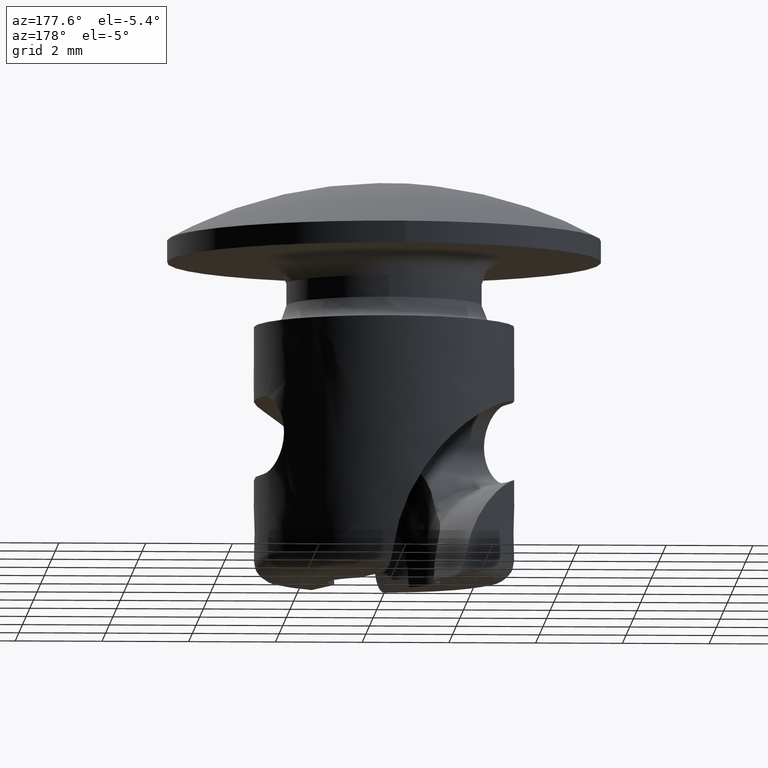
[diagram: clean part render]
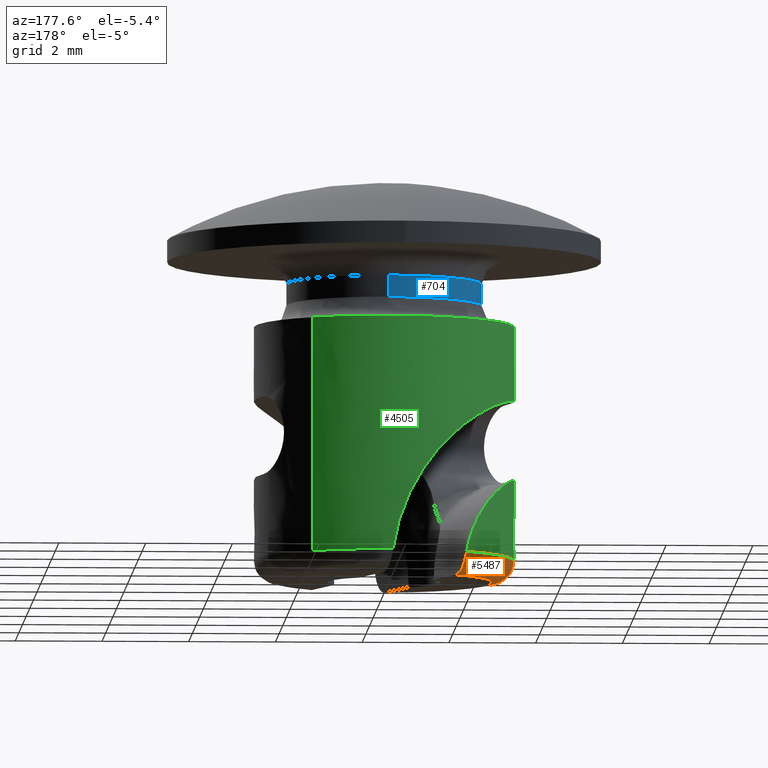
[diagram: same view with three faces highlighted in distinct colors, each labeled with its STEP entity id]
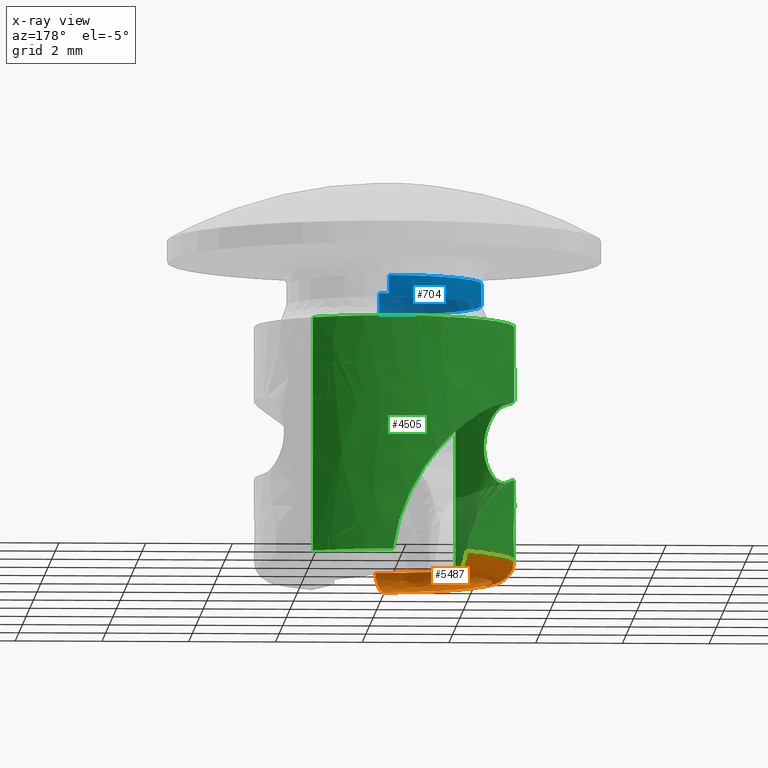
[diagram: x-ray of the same camera — body ghosted, the three highlighted faces saturated]
A machine part, auxiliary view with three faces highlighted in distinct colors.
The next image is the same camera in x-ray (body ghosted, the three faces saturated) — at least one of them is partly hidden behind the body in this view.
Their STEP definitions:

[orange] entity #5487 — the highlighted face is a freeform B-spline surface patch.
#4337=CARTESIAN_POINT('',(-1.743878512532106,-2.441083311468252,-6.899999999999999));
#4338=VERTEX_POINT('',#4337);
#4344=CARTESIAN_POINT('',(0.084513880760828,-2.998809331044365,-6.900000000000000));
#4345=VERTEX_POINT('',#4344);
#4346=CARTESIAN_POINT('',(-1.743878512532108,-2.441083311468253,-6.900000000000000));
#4347=CARTESIAN_POINT('',(-0.923410453437957,-3.027215137347076,-6.900000000000000));
#4348=CARTESIAN_POINT('',(0.084513880760826,-2.998809331044364,-6.900000000000000));
#4356=(BOUNDED_CURVE()B_SPLINE_CURVE(2,(#4346,#4347,#4348),.UNSPECIFIED.,.F.,.U.)B_SPLINE_CURVE_WITH_KNOTS((3,3),(0.743372198286852,1.0),.UNSPECIFIED.)CURVE()GEOMETRIC_REPRESENTATION_ITEM()RATIONAL_B_SPLINE_CURVE((0.903733540292922,0.901111897348261,1.0))REPRESENTATION_ITEM(''));
#4357=EDGE_CURVE('',#4338,#4345,#4356,.T.);
#4444=CARTESIAN_POINT('',(-1.803708136351060,2.397214416538705,-6.900000000000000));
#4445=VERTEX_POINT('',#4444);
#4487=CARTESIAN_POINT('',(-1.803708136351058,2.397214416538703,-6.900000000000000));
#4488=CARTESIAN_POINT('',(-3.555889252561392,1.078841177221821,-6.899999999999999));
#4489=CARTESIAN_POINT('',(-2.831638270195138,-0.990870681151827,-6.900000000000000));
#4490=CARTESIAN_POINT('',(-2.517581247775016,-1.888360031300526,-6.899999999999999));
#4491=CARTESIAN_POINT('',(-1.743878512532108,-2.441083311468253,-6.900000000000000));
#4499=(BOUNDED_CURVE()B_SPLINE_CURVE(2,(#4487,#4488,#4489,#4490,#4491),.UNSPECIFIED.,.F.,.U.)B_SPLINE_CURVE_WITH_KNOTS((3,2,3),(0.0,0.500000000000000,0.743372198286852),.UNSPECIFIED.)CURVE()GEOMETRIC_REPRESENTATION_ITEM()RATIONAL_B_SPLINE_CURVE((1.0,0.807331664785343,1.0,0.906219767437082,0.903733540292922))REPRESENTATION_ITEM(''));
#4500=EDGE_CURVE('',#4445,#4338,#4499,.T.);
#5355=CARTESIAN_POINT('',(-1.582082869889200,1.935720484161465,-7.400000000000000));
#5356=VERTEX_POINT('',#5355);
#5362=CARTESIAN_POINT('',(-1.803708136351065,2.397214416538697,-6.900000000000000));
#5363=CARTESIAN_POINT('',(-1.797961181382960,2.401538530962380,-6.933022218982509));
#5364=CARTESIAN_POINT('',(-1.791695716217509,2.402168208701092,-6.965802722609945));
#5365=CARTESIAN_POINT('',(-1.778037517526572,2.396064065551735,-7.030863106628091));
#5366=CARTESIAN_POINT('',(-1.770557651700607,2.389159614174948,-7.063437987132889));
#5367=CARTESIAN_POINT('',(-1.754914442266166,2.368478974802954,-7.124957164972694));
#5368=CARTESIAN_POINT('',(-1.746691934570622,2.354739567156567,-7.154246174715344));
#5369=CARTESIAN_POINT('',(-1.729105291971162,2.320515891710364,-7.209813121534586));
#5370=CARTESIAN_POINT('',(-1.720049279144245,2.300641134625487,-7.235106421165424));
#5371=CARTESIAN_POINT('',(-1.701102163545381,2.255946609215684,-7.281028537031800));
#5372=CARTESIAN_POINT('',(-1.691120242793065,2.230869381422502,-7.301767507089904));
#5373=CARTESIAN_POINT('',(-1.670751195661710,2.177921899020986,-7.337102208165809));
#5374=CARTESIAN_POINT('',(-1.660292441565339,2.149896562634293,-7.351925258676292));
#5375=CARTESIAN_POINT('',(-1.638551208425671,2.090911029740821,-7.375992494795002));
#5376=CARTESIAN_POINT('',(-1.627459014622146,2.060467506730734,-7.384988637944568));
#5377=CARTESIAN_POINT('',(-1.605040171158075,1.998850292804469,-7.396962643234331));
#5378=CARTESIAN_POINT('',(-1.593574760727012,1.967294173146149,-7.400000000000012));
#5379=CARTESIAN_POINT('',(-1.582082869889198,1.935720484161466,-7.400000000000000));
#5380=B_SPLINE_CURVE_WITH_KNOTS('',3,(#5362,#5363,#5364,#5365,#5366,#5367,#5368,#5369,#5370,#5371,#5372,#5373,#5374,#5375,#5376,#5377,#5378,#5379),.UNSPECIFIED.,.F.,.U.,(4,2,2,2,2,2,2,2,4),(0.0,0.125000000000000,0.250000000000000,0.375000000000000,0.500000000000000,0.625000000000000,0.750000000000000,0.875000000000000,1.0),.UNSPECIFIED.);
#5381=EDGE_CURVE('',#4445,#5356,#5380,.T.);
#5403=CARTESIAN_POINT('',(-0.129273508809591,-2.496655434760685,-7.400000000000000));
#5404=VERTEX_POINT('',#5403);
#5405=CARTESIAN_POINT('',(0.084513880760828,-2.998809331044365,-6.900000000000000));
#5406=CARTESIAN_POINT('',(0.080249640827647,-2.998929507896393,-6.934179523748178));
#5407=CARTESIAN_POINT('',(0.075266717654298,-2.995591923318556,-6.967668315390085));
#5408=CARTESIAN_POINT('',(0.063882605638619,-2.982380328953165,-7.033330311159737));
#5409=CARTESIAN_POINT('',(0.057394389934087,-2.972329246874971,-7.065851533563909));
#5410=CARTESIAN_POINT('',(0.043265946801210,-2.946272948323146,-7.127336415637835));
#5411=CARTESIAN_POINT('',(0.035640559682049,-2.930354550876194,-7.156354816391503));
#5412=CARTESIAN_POINT('',(0.019086528760610,-2.892879908489271,-7.210973620549295));
#5413=CARTESIAN_POINT('',(0.010145760742199,-2.871262656642818,-7.236496990878762));
#5414=CARTESIAN_POINT('',(-0.008499485151161,-2.824302943575927,-7.281965370563245));
#5415=CARTESIAN_POINT('',(-0.018292046451575,-2.798765280771811,-7.302225975906246));
#5416=CARTESIAN_POINT('',(-0.039037932293067,-2.743595936780727,-7.337727951273239));
#5417=CARTESIAN_POINT('',(-0.049691805990631,-2.714764971014944,-7.352448876695371));
#5418=CARTESIAN_POINT('',(-0.071631319478530,-2.654976445000061,-7.376139308437509));
#5419=CARTESIAN_POINT('',(-0.083029779238905,-2.623706784345685,-7.385166526157228));
#5420=CARTESIAN_POINT('',(-0.106071620560561,-2.560423655039485,-7.397083143075069));
#5421=CARTESIAN_POINT('',(-0.117640795038970,-2.528616031309301,-7.400000000000236));
#5422=CARTESIAN_POINT('',(-0.129273508809769,-2.496655434760764,-7.400000000000238));
#5423=B_SPLINE_CURVE_WITH_KNOTS('',3,(#5405,#5406,#5407,#5408,#5409,#5410,#5411,#5412,#5413,#5414,#5415,#5416,#5417,#5418,#5419,#5420,#5421,#5422),.UNSPECIFIED.,.F.,.U.,(4,2,2,2,2,2,2,2,4),(0.0,0.125000000000000,0.250000000000000,0.375000000000000,0.500000000000000,0.625000000000000,0.750000000000000,0.875000000000000,1.0),.UNSPECIFIED.);
#5424=EDGE_CURVE('',#4345,#5404,#5423,.T.);
#5434=CARTESIAN_POINT('',(-1.220628940456989,2.141721197691870,-7.398783150898820));
#5435=CARTESIAN_POINT('',(-2.998717988184576,1.128336751245284,-7.398783150898823));
#5436=CARTESIAN_POINT('',(-2.329710772487042,-0.805824059880122,-7.398783150898822));
#5437=CARTESIAN_POINT('',(-1.660772273449445,-2.739786204881156,-7.398783150898823));
#5438=CARTESIAN_POINT('',(0.363270439289297,-2.438224617803376,-7.398783150898823));
#5439=CARTESIAN_POINT('',(-1.504616018831635,2.640006241955898,-7.438869667779611));
#5440=CARTESIAN_POINT('',(-3.696388780764020,1.390851465412983,-7.438869667779613));
#5441=CARTESIAN_POINT('',(-2.871732785736081,-0.993304147287910,-7.438869667779613));
#5442=CARTESIAN_POINT('',(-2.047161494735607,-3.377214872928354,-7.438869667779612));
#5443=CARTESIAN_POINT('',(0.447787615061828,-3.005493066617873,-7.438869667779612));
#5444=CARTESIAN_POINT('',(-1.484873299678813,2.605365575404239,-6.865324705184772));
#5445=CARTESIAN_POINT('',(-3.647886860895497,1.372601500291475,-6.865324705184777));
#5446=CARTESIAN_POINT('',(-2.834051534731744,-0.980270572895643,-6.865324705184775));
#5447=CARTESIAN_POINT('',(-2.020299801157187,-3.332900972291611,-6.865324705184776));
#5448=CARTESIAN_POINT('',(0.441911999613348,-2.966056688972456,-6.865324705184774));
#5456=(BOUNDED_SURFACE()B_SPLINE_SURFACE(2,2,((#5434,#5439,#5444),(#5435,#5440,#5445),(#5436,#5441,#5446),(#5437,#5442,#5447),(#5438,#5443,#5448)),.UNSPECIFIED.,.F.,.F.,.U.)B_SPLINE_SURFACE_WITH_KNOTS((3,2,3),(3,3),(0.0,4.330173010718348,8.660007971026714),(0.0,0.911185222415850),.UNSPECIFIED.)GEOMETRIC_REPRESENTATION_ITEM()RATIONAL_B_SPLINE_SURFACE(((0.891703937481030,0.586785571209039,0.896670707145739),(0.694529505467832,0.457034981519461,0.698398018248822),(0.913811094967896,0.601333181114613,0.918901000972554),(0.694546624467708,0.457046246673397,0.698415232601118),(0.891673153767747,0.586765313993585,0.896639751967909)))REPRESENTATION_ITEM('')SURFACE());
#5457=ORIENTED_EDGE('',*,*,#4357,.F.);
#5458=ORIENTED_EDGE('',*,*,#4500,.F.);
#5459=ORIENTED_EDGE('',*,*,#5381,.T.);
#5460=CARTESIAN_POINT('',(-0.129273508809591,-2.496655434760685,-7.400000000000000));
#5461=CARTESIAN_POINT('',(-0.277801257051889,-2.488980804521002,-7.399999999999997));
#5462=CARTESIAN_POINT('',(-0.495660132037792,-2.458038532278590,-7.399999999999985));
#5463=CARTESIAN_POINT('',(-0.805028879807325,-2.371590909038336,-7.400000000000029));
#5464=CARTESIAN_POINT('',(-1.111427679083995,-2.250722072444934,-7.399999999999939));
#5465=CARTESIAN_POINT('',(-1.423328356046611,-2.067645664381170,-7.400000000000022));
#5466=CARTESIAN_POINT('',(-1.678231619904428,-1.859045289911891,-7.400000000000013));
#5467=CARTESIAN_POINT('',(-1.899017838995271,-1.636636071335854,-7.399999999999928));
#5468=CARTESIAN_POINT('',(-2.083221797329770,-1.396763343215451,-7.400000000000273));
#5469=CARTESIAN_POINT('',(-2.265122632774566,-1.076360196646100,-7.399999999999333));
#5470=CARTESIAN_POINT('',(-2.381690381303935,-0.784626127673196,-7.400000000001425));
#5471=CARTESIAN_POINT('',(-2.461944023957102,-0.465359847030243,-7.399999999999087));
#5472=CARTESIAN_POINT('',(-2.506604995012188,-0.127104609455254,-7.400000000000590));
#5473=CARTESIAN_POINT('',(-2.498688460298284,0.242175595612436,-7.399999999999847));
#5474=CARTESIAN_POINT('',(-2.427543263406517,0.635941191012803,-7.399999999999396));
#5475=CARTESIAN_POINT('',(-2.320946518025927,0.948116782062701,-7.400000000000315));
#5476=CARTESIAN_POINT('',(-2.182288406986110,1.229234532182210,-7.399999999999682));
#5477=CARTESIAN_POINT('',(-2.039801596017193,1.454563006497734,-7.400000000000615));
#5478=CARTESIAN_POINT('',(-1.841013201385207,1.702106712840802,-7.399999999999006));
#5479=CARTESIAN_POINT('',(-1.682091786727279,1.853993551374730,-7.400000000001063));
#5480=CARTESIAN_POINT('',(-1.582082869889200,1.935720484161465,-7.400000000000000));
#5481=B_SPLINE_CURVE_WITH_KNOTS('',3,(#5460,#5461,#5462,#5463,#5464,#5465,#5466,#5467,#5468,#5469,#5470,#5471,#5472,#5473,#5474,#5475,#5476,#5477,#5478,#5479,#5480),.UNSPECIFIED.,.F.,.U.,(4,1,1,1,1,1,1,1,1,1,1,1,1,1,1,1,1,1,4),(0.000000010724058,0.446173797038003,0.657521533863358,0.962799198912007,1.432460673357116,1.737740531162690,1.949088253579649,2.371783140292630,2.641837158261725,3.052779955990687,3.311095169875363,3.628114139860734,4.074292471692561,4.414797036118530,4.825750795329416,5.060581459557786,5.354119777379385,5.624174580072793,6.011638970585607),.UNSPECIFIED.);
#5482=EDGE_CURVE('',#5404,#5356,#5481,.T.);
#5483=ORIENTED_EDGE('',*,*,#5482,.F.);
#5484=ORIENTED_EDGE('',*,*,#5424,.F.);
#5485=EDGE_LOOP('',(#5457,#5458,#5459,#5483,#5484));
#5486=FACE_OUTER_BOUND('',#5485,.T.);
#5487=ADVANCED_FACE('',(#5486),#5456,.T.);

[blue] entity #704 — the highlighted face is a freeform B-spline surface patch.
#499=CARTESIAN_POINT('',(-2.249822389316115,-0.028270417823144,-0.500000475521371));
#500=VERTEX_POINT('',#499);
#514=CARTESIAN_POINT('',(0.019633587222252,-2.249914336647404,-0.500000237179640));
#515=VERTEX_POINT('',#514);
#516=CARTESIAN_POINT('',(0.019633587222252,-2.249914336647404,-0.500000237179640));
#517=CARTESIAN_POINT('',(0.009816980490564,-2.249999999999712,-0.500000238217032));
#518=CARTESIAN_POINT('',(8.948892E-013,-2.249999999999714,-0.500000239254406));
#519=CARTESIAN_POINT('',(-2.221904975089807,-2.249999999999841,-0.500000474046277));
#520=CARTESIAN_POINT('',(-2.249822389316116,-0.028270417823144,-0.500000475521371));
#528=(BOUNDED_CURVE()B_SPLINE_CURVE(2,(#516,#517,#518,#519,#520),.UNSPECIFIED.,.F.,.U.)B_SPLINE_CURVE_WITH_KNOTS((3,2,3),(0.748460193164341,0.750000000000000,0.997784543868147),.UNSPECIFIED.)CURVE()GEOMETRIC_REPRESENTATION_ITEM()RATIONAL_B_SPLINE_CURVE((0.996414230598438,0.998196004078212,1.0,0.709702349496941,0.994854866321043))REPRESENTATION_ITEM(''));
#529=EDGE_CURVE('',#515,#500,#528,.T.);
#570=CARTESIAN_POINT('',(-2.250000000000000,0.0,-0.499999999999945));
#571=VERTEX_POINT('',#570);
#572=CARTESIAN_POINT('',(-0.019633587222252,2.249914336647404,-0.500000237179640));
#573=VERTEX_POINT('',#572);
#574=CARTESIAN_POINT('',(-2.250000000000000,0.0,-0.499999999999945));
#575=CARTESIAN_POINT('',(-2.250000000000004,2.230451331862164,-0.500000001480715));
#576=CARTESIAN_POINT('',(-0.019633587222252,2.249914336647403,-0.500000237179640));
#584=(BOUNDED_CURVE()B_SPLINE_CURVE(2,(#574,#575,#576),.UNSPECIFIED.,.F.,.U.)B_SPLINE_CURVE_WITH_KNOTS((3,3),(0.0,0.248460193164341),.UNSPECIFIED.)CURVE()GEOMETRIC_REPRESENTATION_ITEM()RATIONAL_B_SPLINE_CURVE((1.0,0.708910777108336,0.996414230598439))REPRESENTATION_ITEM(''));
#585=EDGE_CURVE('',#571,#573,#584,.T.);
#587=CARTESIAN_POINT('',(-2.249822389316116,-0.028270417823144,-0.500000475521371));
#588=CARTESIAN_POINT('',(-2.249999999999108,-0.014135766836725,-0.500000237760658));
#589=CARTESIAN_POINT('',(-2.250000000000000,0.0,-0.499999999999945));
#597=(BOUNDED_CURVE()B_SPLINE_CURVE(2,(#587,#588,#589),.UNSPECIFIED.,.F.,.U.)B_SPLINE_CURVE_WITH_KNOTS((3,3),(0.997784543868147,1.0),.UNSPECIFIED.)CURVE()GEOMETRIC_REPRESENTATION_ITEM()RATIONAL_B_SPLINE_CURVE((0.994854866321043,0.997404431689606,1.0))REPRESENTATION_ITEM(''));
#598=EDGE_CURVE('',#500,#571,#597,.T.);
#622=CARTESIAN_POINT('',(-0.019634704871341,2.249914326894384,-1.012500020154509));
#623=CARTESIAN_POINT('',(-2.269549031765726,2.230279622023043,-1.012500020154509));
#624=CARTESIAN_POINT('',(-2.249914326894384,-0.019634704871341,-1.012500020154509));
#625=CARTESIAN_POINT('',(-2.230279622023043,-2.269549031765726,-1.012500020154509));
#626=CARTESIAN_POINT('',(0.019634704871341,-2.249914326894384,-1.012500020154509));
#627=CARTESIAN_POINT('',(-0.019634704871341,2.249914326894384,-0.487187499496081));
#628=CARTESIAN_POINT('',(-2.269549031765726,2.230279622023043,-0.487187499496081));
#629=CARTESIAN_POINT('',(-2.249914326894384,-0.019634704871341,-0.487187499496081));
#630=CARTESIAN_POINT('',(-2.230279622023043,-2.269549031765726,-0.487187499496081));
#631=CARTESIAN_POINT('',(0.019634704871341,-2.249914326894384,-0.487187499496081));
#639=(BOUNDED_SURFACE()B_SPLINE_SURFACE(2,1,((#622,#627),(#623,#628),(#624,#629),(#625,#630),(#626,#631)),.UNSPECIFIED.,.F.,.F.,.U.)B_SPLINE_SURFACE_WITH_KNOTS((3,2,3),(2,2),(0.0,3.727922061357854,7.455844122715709),(0.0,1.0),.UNSPECIFIED.)GEOMETRIC_REPRESENTATION_ITEM()RATIONAL_B_SPLINE_SURFACE(((1.0,1.0),(0.707106781186548,0.707106781186548),(1.0,1.0),(0.707106781186548,0.707106781186548),(1.0,1.0)))REPRESENTATION_ITEM('')SURFACE());
#640=CARTESIAN_POINT('',(-0.019633703514247,2.249914335632650,-1.000000009979010));
#641=VERTEX_POINT('',#640);
#642=CARTESIAN_POINT('',(-2.249822349458519,0.028273589742916,-1.000000019662934));
#643=VERTEX_POINT('',#642);
#644=CARTESIAN_POINT('',(-0.019633703514247,2.249914335632651,-1.000000009979010));
#645=CARTESIAN_POINT('',(-2.222144457690948,2.230694295807431,-1.000000019602452));
#646=CARTESIAN_POINT('',(-2.249822349458519,0.028273589742916,-1.000000019662934));
#654=(BOUNDED_CURVE()B_SPLINE_CURVE(2,(#644,#645,#646),.UNSPECIFIED.,.F.,.U.)B_SPLINE_CURVE_WITH_KNOTS((3,3),(0.251539815940075,0.497784295921308),.UNSPECIFIED.)CURVE()GEOMETRIC_REPRESENTATION_ITEM()RATIONAL_B_SPLINE_CURVE((0.996414209528255,0.711474669414962,0.994854295643046))REPRESENTATION_ITEM(''));
#655=EDGE_CURVE('',#641,#643,#654,.T.);
#656=ORIENTED_EDGE('',*,*,#655,.T.);
#657=CARTESIAN_POINT('',(-2.250000000000000,0.0,-1.0));
#658=VERTEX_POINT('',#657);
#659=CARTESIAN_POINT('',(-2.249822349458519,0.028273589742916,-1.000000019662934));
#660=CARTESIAN_POINT('',(-2.250000000000000,0.014137352984439,-1.000000009831467));
#661=CARTESIAN_POINT('',(-2.250000000000000,0.0,-1.0));
#669=(BOUNDED_CURVE()B_SPLINE_CURVE(2,(#659,#660,#661),.UNSPECIFIED.,.F.,.U.)B_SPLINE_CURVE_WITH_KNOTS((3,3),(0.497784295921308,0.500000000000000),.UNSPECIFIED.)CURVE()GEOMETRIC_REPRESENTATION_ITEM()RATIONAL_B_SPLINE_CURVE((0.994854295643046,0.997404141201815,1.0))REPRESENTATION_ITEM(''));
#670=EDGE_CURVE('',#643,#658,#669,.T.);
#671=ORIENTED_EDGE('',*,*,#670,.T.);
#672=CARTESIAN_POINT('',(0.019633703514247,-2.249914335632650,-1.000000009979010));
#673=VERTEX_POINT('',#672);
#674=CARTESIAN_POINT('',(-2.250000000000000,0.0,-1.0));
#675=CARTESIAN_POINT('',(-2.250000000000002,-2.249999999999890,-1.000000000061764));
#676=CARTESIAN_POINT('',(-2.370796E-015,-2.249999999999777,-1.000000009893222));
#677=CARTESIAN_POINT('',(0.009817038639434,-2.249999999999777,-1.000000009936118));
#678=CARTESIAN_POINT('',(0.019633703514247,-2.249914335632650,-1.000000009979010));
#686=(BOUNDED_CURVE()B_SPLINE_CURVE(2,(#674,#675,#676,#677,#678),.UNSPECIFIED.,.F.,.U.)B_SPLINE_CURVE_WITH_KNOTS((3,2,3),(0.500000000000000,0.750000000000000,0.751539815940075),.UNSPECIFIED.)CURVE()GEOMETRIC_REPRESENTATION_ITEM()RATIONAL_B_SPLINE_CURVE((1.0,0.707106781186547,1.0,0.998195993411725,0.996414209528255))REPRESENTATION_ITEM(''));
#687=EDGE_CURVE('',#658,#673,#686,.T.);
#688=ORIENTED_EDGE('',*,*,#687,.T.);
#689=CARTESIAN_POINT('',(0.019633703514247,-2.249914335632650,-1.000000009979010));
#690=CARTESIAN_POINT('',(0.019633587222252,-2.249914336647404,-0.500000237179640));
#691=QUASI_UNIFORM_CURVE('',1,(#689,#690),.UNSPECIFIED.,.F.,.U.);
#692=EDGE_CURVE('',#673,#515,#691,.T.);
#693=ORIENTED_EDGE('',*,*,#692,.T.);
#694=ORIENTED_EDGE('',*,*,#529,.T.);
#695=ORIENTED_EDGE('',*,*,#598,.T.);
#696=ORIENTED_EDGE('',*,*,#585,.T.);
#697=CARTESIAN_POINT('',(-0.019633703514247,2.249914335632650,-1.000000009979010));
#698=CARTESIAN_POINT('',(-0.019633587222252,2.249914336647404,-0.500000237179640));
#699=QUASI_UNIFORM_CURVE('',1,(#697,#698),.UNSPECIFIED.,.F.,.U.);
#700=EDGE_CURVE('',#641,#573,#699,.T.);
#701=ORIENTED_EDGE('',*,*,#700,.F.);
#702=EDGE_LOOP('',(#656,#671,#688,#693,#694,#695,#696,#701));
#703=FACE_OUTER_BOUND('',#702,.T.);
#704=ADVANCED_FACE('',(#703),#639,.T.);

[green] entity #4505 — the highlighted face is a freeform B-spline surface patch.
#1182=CARTESIAN_POINT('',(-2.819077636768030,-1.026061049779424,-3.200000000000000));
#1183=VERTEX_POINT('',#1182);
#1370=CARTESIAN_POINT('',(-2.819077636768980,-1.026061049776802,-5.0));
#1371=VERTEX_POINT('',#1370);
#1771=CARTESIAN_POINT('',(-0.084513880760795,2.998809331044365,-6.900000000000000));
#1772=VERTEX_POINT('',#1771);
#1773=CARTESIAN_POINT('',(-2.819077636768030,-1.026061049779424,-3.200000000000000));
#1774=CARTESIAN_POINT('',(-2.873550972533298,-0.876396892184820,-3.200000000000014));
#1775=CARTESIAN_POINT('',(-2.915453257440908,-0.724426621176468,-3.200620960101949));
#1776=CARTESIAN_POINT('',(-2.975154664067936,-0.416072530536141,-3.203704992722730));
#1777=CARTESIAN_POINT('',(-2.992951893773923,-0.259688294556457,-3.206162579722587));
#1778=CARTESIAN_POINT('',(-2.999634688395524,-0.061373257389993,-3.211644033070710));
#1779=CARTESIAN_POINT('',(-3.000185054679621,-0.021507609498423,-3.212867260930302));
#1780=CARTESIAN_POINT('',(-2.999705113013827,0.057811543380187,-3.215584441225255));
#1781=CARTESIAN_POINT('',(-2.996627406675537,0.176399277104420,-3.220072589589952));
#1782=CARTESIAN_POINT('',(-2.986605089649258,0.293820577257775,-3.225976006410372));
#1783=CARTESIAN_POINT('',(-2.957487717714053,0.527094272522938,-3.240242224863573));
#1784=CARTESIAN_POINT('',(-2.926028094709749,0.680529320736896,-3.252982869026257));
#1785=CARTESIAN_POINT('',(-2.860590790118135,0.907309469445002,-3.279980962199737));
#1786=CARTESIAN_POINT('',(-2.835602913669079,0.982587445909025,-3.290360778736338));
#1787=CARTESIAN_POINT('',(-2.780528962189128,1.129061850960359,-3.313932652697721));
#1788=CARTESIAN_POINT('',(-2.750371320043353,1.200582192634356,-3.327153070128216));
#1789=CARTESIAN_POINT('',(-2.652459666878137,1.410041741628936,-3.371791994183104));
#1790=CARTESIAN_POINT('',(-2.577290539921757,1.542900104226222,-3.408154750175014));
#1791=CARTESIAN_POINT('',(-2.450834805110072,1.731805581686016,-3.475779004500222));
#1792=CARTESIAN_POINT('',(-2.406135910051407,1.793342818281664,-3.500663561705135));
#1793=CARTESIAN_POINT('',(-2.313999938761264,1.910751884712975,-3.554430318977048));
#1794=CARTESIAN_POINT('',(-2.266516013630884,1.966756447840507,-3.583324688457430));
#1795=CARTESIAN_POINT('',(-2.120476966474755,2.127082625409792,-3.676393134085370));
#1796=CARTESIAN_POINT('',(-2.018344502276162,2.223734870477811,-3.746939650928855));
#1797=CARTESIAN_POINT('',(-1.860287265590625,2.354571960143732,-3.867088813895853));
#1798=CARTESIAN_POINT('',(-1.806664794096661,2.395887459567101,-3.909649710559402));
#1799=CARTESIAN_POINT('',(-1.700069317336438,2.472666316628760,-3.998204176422849));
#1800=CARTESIAN_POINT('',(-1.646873673598775,2.508328226089166,-4.044357093658393));
#1801=CARTESIAN_POINT('',(-1.488086701576572,2.607913249121752,-4.188463120588741));
#1802=CARTESIAN_POINT('',(-1.383297055922477,2.664458477860601,-4.292050562019399));
#1803=CARTESIAN_POINT('',(-1.229537073905440,2.737051518547600,-4.459003779661253));
#1804=CARTESIAN_POINT('',(-1.179033512583073,2.759110629549861,-4.516410316684110));
#1805=CARTESIAN_POINT('',(-1.080795796758134,2.799051970864237,-4.633446885482379));
#1806=CARTESIAN_POINT('',(-1.032895332989122,2.817013256605606,-4.693254826886947));
#1807=CARTESIAN_POINT('',(-0.893045203287020,2.865696441023730,-4.876502538980319));
#1808=CARTESIAN_POINT('',(-0.804936606905441,2.891241852757484,-5.003753789994796));
#1809=CARTESIAN_POINT('',(-0.681383857218495,2.921902913717402,-5.202308153453269));
#1810=CARTESIAN_POINT('',(-0.641636892288733,2.930840169511570,-5.269775616435576));
#1811=CARTESIAN_POINT('',(-0.565205892206523,2.946534286273213,-5.407322389132385));
#1812=CARTESIAN_POINT('',(-0.528436695903858,2.953302858642278,-5.477590836226539));
#1813=CARTESIAN_POINT('',(-0.424105008883442,2.970708233268607,-5.690181386340784));
#1814=CARTESIAN_POINT('',(-0.362212268531800,2.978547339912875,-5.834715356492886));
#1815=CARTESIAN_POINT('',(-0.254306355349250,2.989694007955666,-6.129474435420192));
#1816=CARTESIAN_POINT('',(-0.208292826599077,2.992996566868002,-6.279699614013794));
#1817=CARTESIAN_POINT('',(-0.133199036840523,2.997277492572392,-6.586121761374924));
#1818=CARTESIAN_POINT('',(-0.104112849850440,2.998256983511118,-6.742906721966787));
#1819=CARTESIAN_POINT('',(-0.084513880760795,2.998809331044365,-6.900000000000000));
#1820=B_SPLINE_CURVE_WITH_KNOTS('',3,(#1773,#1774,#1775,#1776,#1777,#1778,#1779,#1780,#1781,#1782,#1783,#1784,#1785,#1786,#1787,#1788,#1789,#1790,#1791,#1792,#1793,#1794,#1795,#1796,#1797,#1798,#1799,#1800,#1801,#1802,#1803,#1804,#1805,#1806,#1807,#1808,#1809,#1810,#1811,#1812,#1813,#1814,#1815,#1816,#1817,#1818,#1819),.UNSPECIFIED.,.F.,.U.,(4,2,2,2,1,2,2,2,2,2,2,2,2,2,2,2,2,2,2,2,2,2,2,4),(0.0,0.062500000000000,0.125000000000000,0.140625000000000,0.156250000000000,0.187500000000000,0.250000000000000,0.281250000000000,0.312500000000000,0.375000000000000,0.406250000000000,0.437500000000000,0.500000000000000,0.531250000000001,0.562500000000001,0.625000000000001,0.656250000000001,0.687500000000001,0.750000000000001,0.781250000000001,0.812500000000001,0.875000000000001,0.937500000000000,1.0),.UNSPECIFIED.);
#1821=EDGE_CURVE('',#1183,#1772,#1820,.T.);
#2283=CARTESIAN_POINT('',(-2.819077636768980,-1.026061049776802,-5.0));
#2284=CARTESIAN_POINT('',(-2.798785852479630,-1.081812230770973,-4.999999999997360));
#2285=CARTESIAN_POINT('',(-2.777069528812395,-1.136336782182247,-4.994190302238293));
#2286=CARTESIAN_POINT('',(-2.742505030692936,-1.216351211297097,-4.976839874352963));
#2287=CARTESIAN_POINT('',(-2.730583819175942,-1.242869515625153,-4.969554674253077));
#2288=CARTESIAN_POINT('',(-2.706472905489137,-1.294533521493143,-4.952243963360752));
#2289=CARTESIAN_POINT('',(-2.694312216955098,-1.319631296011369,-4.942256422416298));
#2290=CARTESIAN_POINT('',(-2.657625240135685,-1.392841843992243,-4.908421059078902));
#2291=CARTESIAN_POINT('',(-2.632886615184682,-1.438888123841255,-4.880739812898549));
#2292=CARTESIAN_POINT('',(-2.583566684362101,-1.525671704138101,-4.814825006292114));
#2293=CARTESIAN_POINT('',(-2.559772192719916,-1.565039603624656,-4.777633719952977));
#2294=CARTESIAN_POINT('',(-2.525979345079011,-1.618602486137032,-4.715738162669947));
#2295=CARTESIAN_POINT('',(-2.515032423152089,-1.635536659370933,-4.694078363240527));
#2296=CARTESIAN_POINT('',(-2.493903576447383,-1.667577046207623,-4.648640021082660));
#2297=CARTESIAN_POINT('',(-2.483709691512201,-1.682697311900877,-4.624804741869280));
#2298=CARTESIAN_POINT('',(-2.455114335555809,-1.724398416856126,-4.551604247448521));
#2299=CARTESIAN_POINT('',(-2.438448916111963,-1.747718388370456,-4.500096136917394));
#2300=CARTESIAN_POINT('',(-2.410759514257337,-1.785718691720979,-4.391543836776870));
#2301=CARTESIAN_POINT('',(-2.399752444081323,-1.800370634028138,-4.334074415587891));
#2302=CARTESIAN_POINT('',(-2.385161507846844,-1.819656779241436,-4.218285935031219));
#2303=CARTESIAN_POINT('',(-2.381392567649904,-1.824546365444437,-4.159412155376280));
#2304=CARTESIAN_POINT('',(-2.381428267187695,-1.824499769570197,-4.039745567977482));
#2305=CARTESIAN_POINT('',(-2.385229138652552,-1.819568188285412,-3.980985526308503));
#2306=CARTESIAN_POINT('',(-2.396180097879803,-1.805092116070904,-3.894371819951651));
#2307=CARTESIAN_POINT('',(-2.400709065834778,-1.799076850261900,-3.865756764253603));
#2308=CARTESIAN_POINT('',(-2.411495313848231,-1.784592918068325,-3.809046174169361));
#2309=CARTESIAN_POINT('',(-2.417762778510589,-1.776108750764782,-3.780965935927992));
#2310=CARTESIAN_POINT('',(-2.438601444201112,-1.747506677212690,-3.699376578650755));
#2311=CARTESIAN_POINT('',(-2.455307779311859,-1.724123548926781,-3.647836429064805));
#2312=CARTESIAN_POINT('',(-2.483923230006761,-1.682382228646613,-3.574681217132690));
#2313=CARTESIAN_POINT('',(-2.494117019341063,-1.667258036072774,-3.550874699235819));
#2314=CARTESIAN_POINT('',(-2.515264798027687,-1.635179519446435,-3.505448729055519));
#2315=CARTESIAN_POINT('',(-2.526217587204720,-1.618230735950635,-3.483802800459786));
#2316=CARTESIAN_POINT('',(-2.560015769327163,-1.564641591960566,-3.421966210363377));
#2317=CARTESIAN_POINT('',(-2.583792408568133,-1.525287978785482,-3.384844237373315));
#2318=CARTESIAN_POINT('',(-2.633057817666114,-1.438573306307360,-3.319060696459283));
#2319=CARTESIAN_POINT('',(-2.657834514952780,-1.392437553241889,-3.291366198711797));
#2320=CARTESIAN_POINT('',(-2.694429221274407,-1.319391084443051,-3.257645624661647));
#2321=CARTESIAN_POINT('',(-2.706548035656226,-1.294373731936331,-3.247700526224403));
#2322=CARTESIAN_POINT('',(-2.730553972218855,-1.242932271700479,-3.230468327488715));
#2323=CARTESIAN_POINT('',(-2.742503483853151,-1.216356778076477,-3.223158500610723));
#2324=CARTESIAN_POINT('',(-2.777169209998941,-1.136102046923137,-3.205764473579110));
#2325=CARTESIAN_POINT('',(-2.798865103153312,-1.081594491490002,-3.199999999995255));
#2326=CARTESIAN_POINT('',(-2.819077636768030,-1.026061049779424,-3.200000000000000));
#2327=B_SPLINE_CURVE_WITH_KNOTS('',3,(#2283,#2284,#2285,#2286,#2287,#2288,#2289,#2290,#2291,#2292,#2293,#2294,#2295,#2296,#2297,#2298,#2299,#2300,#2301,#2302,#2303,#2304,#2305,#2306,#2307,#2308,#2309,#2310,#2311,#2312,#2313,#2314,#2315,#2316,#2317,#2318,#2319,#2320,#2321,#2322,#2323,#2324,#2325,#2326),.UNSPECIFIED.,.F.,.U.,(4,2,2,2,2,2,2,2,2,2,2,2,2,2,2,2,2,2,2,2,2,4),(0.0,0.062500000000000,0.093750000000000,0.125000000000000,0.187500000000000,0.250000000000000,0.281250000000000,0.312500000000000,0.375000000000000,0.437500000000001,0.500000000000001,0.562500000000001,0.593750000000001,0.625000000000002,0.687500000000002,0.718750000000002,0.750000000000002,0.812500000000001,0.875000000000001,0.906250000000001,0.937500000000001,1.0),.UNSPECIFIED.);
#2328=EDGE_CURVE('',#1371,#1183,#2327,.T.);
#3933=CARTESIAN_POINT('',(1.743878512532106,2.441083311468252,-6.899999999999999));
#3934=VERTEX_POINT('',#3933);
#3935=CARTESIAN_POINT('',(1.743878512532107,2.441083311468252,-6.900000000000000));
#3936=CARTESIAN_POINT('',(0.923410453437971,3.027215137347064,-6.900000000000000));
#3937=CARTESIAN_POINT('',(-0.084513880760794,2.998809331044364,-6.900000000000000));
#3945=(BOUNDED_CURVE()B_SPLINE_CURVE(2,(#3935,#3936,#3937),.UNSPECIFIED.,.F.,.U.)B_SPLINE_CURVE_WITH_KNOTS((3,3),(0.743372198286856,1.0),.UNSPECIFIED.)CURVE()GEOMETRIC_REPRESENTATION_ITEM()RATIONAL_B_SPLINE_CURVE((0.903733540292923,0.901111897348264,1.0))REPRESENTATION_ITEM(''));
#3946=EDGE_CURVE('',#3934,#1772,#3945,.T.);
#4047=CARTESIAN_POINT('',(1.743877725871815,2.441083873447854,-1.500000000000055));
#4048=VERTEX_POINT('',#4047);
#4062=CARTESIAN_POINT('',(-3.0,0.0,-1.500000000000055));
#4063=VERTEX_POINT('',#4062);
#4064=CARTESIAN_POINT('',(1.743877725871815,2.441083873447854,-1.500000000000055));
#4065=CARTESIAN_POINT('',(0.961505703513444,2.999999999999880,-1.500000000000056));
#4066=CARTESIAN_POINT('',(-7.096001E-014,2.999999999999901,-1.500000000000056));
#4067=CARTESIAN_POINT('',(-3.000000000000025,2.999999999999966,-1.500000000000055));
#4068=CARTESIAN_POINT('',(-3.0,0.0,-1.500000000000055));
#4076=(BOUNDED_CURVE()B_SPLINE_CURVE(2,(#4064,#4065,#4066,#4067,#4068),.UNSPECIFIED.,.F.,.U.)B_SPLINE_CURVE_WITH_KNOTS((3,2,3),(0.149965649778533,0.250000000000000,0.500000000000000),.UNSPECIFIED.)CURVE()GEOMETRIC_REPRESENTATION_ITEM()RATIONAL_B_SPLINE_CURVE((0.859395168513515,0.882802468686890,1.0,0.707106781186548,1.0))REPRESENTATION_ITEM(''));
#4077=EDGE_CURVE('',#4048,#4063,#4076,.T.);
#4079=CARTESIAN_POINT('',(-1.743877725871815,-2.441083873447854,-1.500000000000056));
#4080=VERTEX_POINT('',#4079);
#4081=CARTESIAN_POINT('',(-3.0,0.0,-1.500000000000055));
#4082=CARTESIAN_POINT('',(-2.999999999999953,-1.543726892538668,-1.500000000000055));
#4083=CARTESIAN_POINT('',(-1.743877725871815,-2.441083873447854,-1.500000000000056));
#4091=(BOUNDED_CURVE()B_SPLINE_CURVE(2,(#4081,#4082,#4083),.UNSPECIFIED.,.F.,.U.)B_SPLINE_CURVE_WITH_KNOTS((3,3),(0.500000000000000,0.649965649778533),.UNSPECIFIED.)CURVE()GEOMETRIC_REPRESENTATION_ITEM()RATIONAL_B_SPLINE_CURVE((1.0,0.824304312499658,0.859395168513515))REPRESENTATION_ITEM(''));
#4092=EDGE_CURVE('',#4063,#4080,#4091,.T.);
#4337=CARTESIAN_POINT('',(-1.743878512532106,-2.441083311468252,-6.899999999999999));
#4338=VERTEX_POINT('',#4337);
#4339=CARTESIAN_POINT('',(-1.743878512532106,-2.441083311468252,-6.899999999999999));
#4340=CARTESIAN_POINT('',(-1.743877725871815,-2.441083873447854,-1.500000000000056));
#4341=QUASI_UNIFORM_CURVE('',1,(#4339,#4340),.UNSPECIFIED.,.F.,.U.);
#4342=EDGE_CURVE('',#4338,#4080,#4341,.T.);
#4411=CARTESIAN_POINT('',(1.743878512532106,2.441083311468252,-6.899999999999999));
#4412=CARTESIAN_POINT('',(1.743877725871815,2.441083873447854,-1.500000000000055));
#4413=QUASI_UNIFORM_CURVE('',1,(#4411,#4412),.UNSPECIFIED.,.F.,.U.);
#4414=EDGE_CURVE('',#3934,#4048,#4413,.T.);
#4420=CARTESIAN_POINT('',(1.743878526417173,2.441083301548938,-7.034999999999999));
#4421=CARTESIAN_POINT('',(-0.697204775131765,4.184961827966111,-7.034999999999999));
#4422=CARTESIAN_POINT('',(-2.441083301548938,1.743878526417173,-7.034999999999999));
#4423=CARTESIAN_POINT('',(-4.184961827966111,-0.697204775131765,-7.034999999999999));
#4424=CARTESIAN_POINT('',(-1.743878526417173,-2.441083301548938,-7.034999999999999));
#4425=CARTESIAN_POINT('',(1.743878526417173,2.441083301548938,-1.361625000000055));
#4426=CARTESIAN_POINT('',(-0.697204775131765,4.184961827966111,-1.361625000000055));
#4427=CARTESIAN_POINT('',(-2.441083301548938,1.743878526417173,-1.361625000000055));
#4428=CARTESIAN_POINT('',(-4.184961827966111,-0.697204775131765,-1.361625000000055));
#4429=CARTESIAN_POINT('',(-1.743878526417173,-2.441083301548938,-1.361625000000055));
#4437=(BOUNDED_SURFACE()B_SPLINE_SURFACE(2,1,((#4420,#4425),(#4421,#4426),(#4422,#4427),(#4423,#4428),(#4424,#4429)),.UNSPECIFIED.,.F.,.F.,.U.)B_SPLINE_SURFACE_WITH_KNOTS((3,2,3),(2,2),(0.0,4.970562748477139,9.941125496954278),(0.0,5.673374999999944),.UNSPECIFIED.)GEOMETRIC_REPRESENTATION_ITEM()RATIONAL_B_SPLINE_SURFACE(((1.0,1.0),(0.707106781186548,0.707106781186548),(1.0,1.0),(0.707106781186548,0.707106781186548),(1.0,1.0)))REPRESENTATION_ITEM('')SURFACE());
#4438=ORIENTED_EDGE('',*,*,#4092,.F.);
#4439=ORIENTED_EDGE('',*,*,#4077,.F.);
#4440=ORIENTED_EDGE('',*,*,#4414,.F.);
#4441=ORIENTED_EDGE('',*,*,#3946,.T.);
#4442=ORIENTED_EDGE('',*,*,#1821,.F.);
#4443=ORIENTED_EDGE('',*,*,#2328,.F.);
#4444=CARTESIAN_POINT('',(-1.803708136351060,2.397214416538705,-6.900000000000000));
#4445=VERTEX_POINT('',#4444);
#4446=CARTESIAN_POINT('',(-2.819077636768980,-1.026061049776802,-5.0));
#4447=CARTESIAN_POINT('',(-2.886356603573274,-0.841213734128820,-5.000000000000036));
#4448=CARTESIAN_POINT('',(-2.934522483304091,-0.652853246726990,-5.001579407789944));
#4449=CARTESIAN_POINT('',(-2.979256139151775,-0.365298164546832,-5.008225596421286));
#4450=CARTESIAN_POINT('',(-2.989547928123367,-0.268605432291502,-5.011196365280373));
#4451=CARTESIAN_POINT('',(-2.997904499401628,-0.122290783251686,-5.017444517269398));
#4452=CARTESIAN_POINT('',(-2.999507915362322,-0.073182875880846,-5.019836233912159));
#4453=CARTESIAN_POINT('',(-3.000297524352672,0.024864291798660,-5.025341262339212));
#4454=CARTESIAN_POINT('',(-2.999489415344910,0.073664599775390,-5.028445241819856));
#4455=CARTESIAN_POINT('',(-2.989585544716179,0.316527861716279,-5.046063818390142));
#4456=CARTESIAN_POINT('',(-2.963014038963404,0.507222868454152,-5.066642919591585));
#4457=CARTESIAN_POINT('',(-2.907623242576440,0.740285439081035,-5.108027236372723));
#4458=CARTESIAN_POINT('',(-2.895429564977406,0.786629617891571,-5.117102833234489));
#4459=CARTESIAN_POINT('',(-2.868815224672079,0.878747818306919,-5.137114471866052));
#4460=CARTESIAN_POINT('',(-2.854335564874750,0.924683641008671,-5.148096461775690));
#4461=CARTESIAN_POINT('',(-2.808116929828628,1.059983358285067,-5.183849358916186));
#4462=CARTESIAN_POINT('',(-2.773593729029997,1.147003528669873,-5.211420620454152));
#4463=CARTESIAN_POINT('',(-2.698216136934144,1.314560362586616,-5.275589184373430));
#4464=CARTESIAN_POINT('',(-2.657357799096591,1.395097124678617,-5.312181741426163));
#4465=CARTESIAN_POINT('',(-2.592150484734753,1.510866466441011,-5.375218391100979));
#4466=CARTESIAN_POINT('',(-2.569664287447284,1.548768247009039,-5.397695125064388));
#4467=CARTESIAN_POINT('',(-2.524111362143262,1.621949279300896,-5.445036843312888));
#4468=CARTESIAN_POINT('',(-2.501055969677411,1.657231384180050,-5.469882084717972));
#4469=CARTESIAN_POINT('',(-2.431388940697128,1.759299609428942,-5.548051656738539));
#4470=CARTESIAN_POINT('',(-2.384276878307416,1.822312950115050,-5.605004506428045));
#4471=CARTESIAN_POINT('',(-2.313905965003131,1.909774689661077,-5.698205305915302));
#4472=CARTESIAN_POINT('',(-2.290498175043333,1.937750899314416,-5.730568629494470));
#4473=CARTESIAN_POINT('',(-2.243999605713607,1.991413118172079,-5.797992734738725));
#4474=CARTESIAN_POINT('',(-2.220820638779867,2.017192649402142,-5.833196815526348));
#4475=CARTESIAN_POINT('',(-2.107429358921045,2.139277777208459,-6.014411494846266));
#4476=CARTESIAN_POINT('',(-2.025546708879180,2.214777402700954,-6.174311198092485));
#4477=CARTESIAN_POINT('',(-1.940407054768486,2.288083338220025,-6.392740767064073));
#4478=CARTESIAN_POINT('',(-1.924217066557559,2.301688327642082,-6.437460783887395));
#4479=CARTESIAN_POINT('',(-1.894124773597189,2.326514951355478,-6.527542543069951));
#4480=CARTESIAN_POINT('',(-1.880163499401287,2.337788469375825,-6.573041659788888));
#4481=CARTESIAN_POINT('',(-1.841602327251384,2.368455132860239,-6.710881092269755));
#4482=CARTESIAN_POINT('',(-1.820318218523813,2.384716685775133,-6.804557844307031));
#4483=CARTESIAN_POINT('',(-1.803708136351060,2.397214416538705,-6.900000000000000));
#4484=B_SPLINE_CURVE_WITH_KNOTS('',3,(#4446,#4447,#4448,#4449,#4450,#4451,#4452,#4453,#4454,#4455,#4456,#4457,#4458,#4459,#4460,#4461,#4462,#4463,#4464,#4465,#4466,#4467,#4468,#4469,#4470,#4471,#4472,#4473,#4474,#4475,#4476,#4477,#4478,#4479,#4480,#4481,#4482,#4483),.UNSPECIFIED.,.F.,.U.,(4,2,2,2,2,2,2,2,2,2,2,2,2,2,2,2,2,2,4),(0.0,0.125000000000000,0.187500000000001,0.218750000000001,0.250000000000001,0.375000000000001,0.406250000000001,0.437500000000001,0.500000000000002,0.562500000000002,0.593750000000002,0.625000000000002,0.687500000000002,0.718750000000002,0.750000000000002,0.875000000000001,0.906250000000001,0.937500000000001,1.0),.UNSPECIFIED.);
#4485=EDGE_CURVE('',#1371,#4445,#4484,.T.);
#4486=ORIENTED_EDGE('',*,*,#4485,.T.);
#4487=CARTESIAN_POINT('',(-1.803708136351058,2.397214416538703,-6.900000000000000));
#4488=CARTESIAN_POINT('',(-3.555889252561392,1.078841177221821,-6.899999999999999));
#4489=CARTESIAN_POINT('',(-2.831638270195138,-0.990870681151827,-6.900000000000000));
#4490=CARTESIAN_POINT('',(-2.517581247775016,-1.888360031300526,-6.899999999999999));
#4491=CARTESIAN_POINT('',(-1.743878512532108,-2.441083311468253,-6.900000000000000));
#4499=(BOUNDED_CURVE()B_SPLINE_CURVE(2,(#4487,#4488,#4489,#4490,#4491),.UNSPECIFIED.,.F.,.U.)B_SPLINE_CURVE_WITH_KNOTS((3,2,3),(0.0,0.500000000000000,0.743372198286852),.UNSPECIFIED.)CURVE()GEOMETRIC_REPRESENTATION_ITEM()RATIONAL_B_SPLINE_CURVE((1.0,0.807331664785343,1.0,0.906219767437082,0.903733540292922))REPRESENTATION_ITEM(''));
#4500=EDGE_CURVE('',#4445,#4338,#4499,.T.);
#4501=ORIENTED_EDGE('',*,*,#4500,.T.);
#4502=ORIENTED_EDGE('',*,*,#4342,.T.);
#4503=EDGE_LOOP('',(#4438,#4439,#4440,#4441,#4442,#4443,#4486,#4501,#4502));
#4504=FACE_OUTER_BOUND('',#4503,.T.);
#4505=ADVANCED_FACE('',(#4504),#4437,.T.);